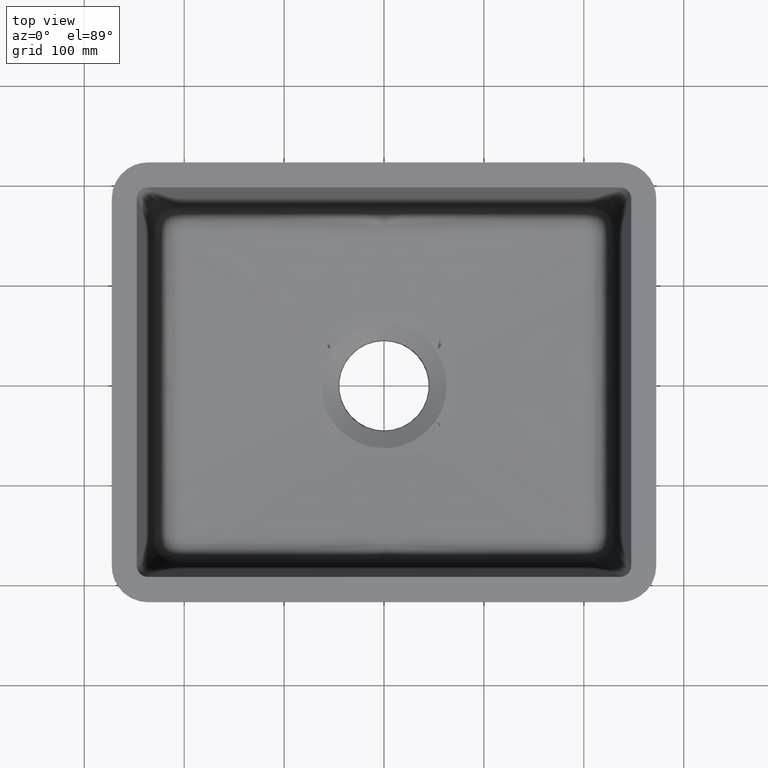
[diagram: clean part render]
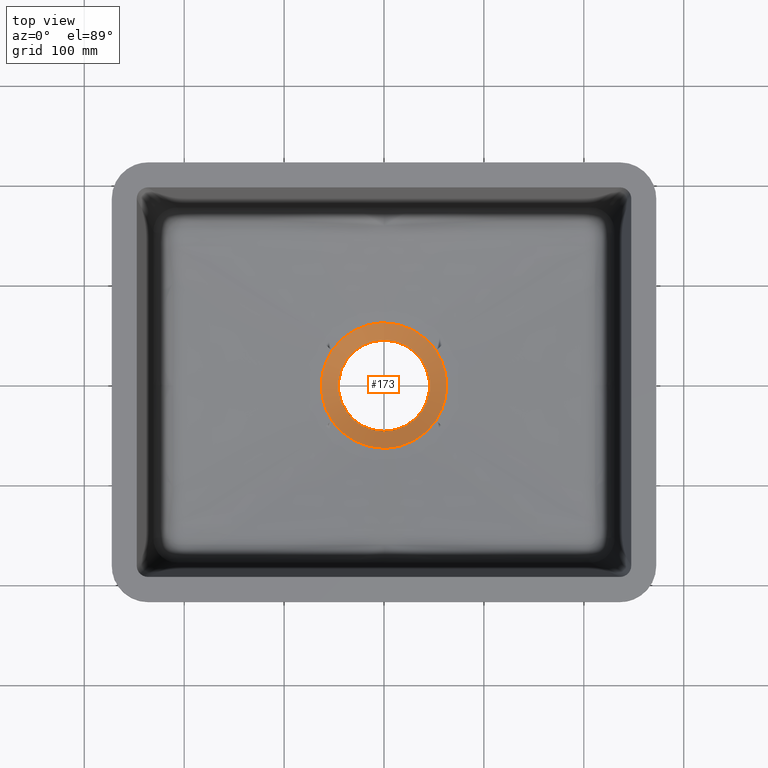
[diagram: same view with one face highlighted and labeled with its STEP entity id]
A machine part, top view. The second image highlights one B-rep face of the part: STEP entity #173.
In plain terms, the highlighted conical surface has half-angle 60 deg.
Its self-contained STEP definition (entity closure, byte-faithful):
#164=FACE_BOUND('',#313,.T.);
#165=FACE_BOUND('',#314,.T.);
#173=ADVANCED_FACE('',(#164,#165),#242,.F.);
#242=CONICAL_SURFACE('',#1213,45.6192580584448,59.9999999999997);
#313=EDGE_LOOP('',(#419,#420,#421,#422,#423,#424,#425,#426));
#314=EDGE_LOOP('',(#427,#428));
#383=CIRCLE('',#1209,45.6192580584448);
#384=CIRCLE('',#1211,45.6192580584448);
#419=ORIENTED_EDGE('',*,*,#901,.F.);
#420=ORIENTED_EDGE('',*,*,#902,.F.);
#421=ORIENTED_EDGE('',*,*,#903,.F.);
#422=ORIENTED_EDGE('',*,*,#904,.F.);
#423=ORIENTED_EDGE('',*,*,#905,.F.);
#424=ORIENTED_EDGE('',*,*,#906,.F.);
#425=ORIENTED_EDGE('',*,*,#907,.F.);
#426=ORIENTED_EDGE('',*,*,#908,.F.);
#427=ORIENTED_EDGE('',*,*,#885,.T.);
#428=ORIENTED_EDGE('',*,*,#887,.T.);
#767=VERTEX_POINT('',#1375);
#768=VERTEX_POINT('',#1377);
#781=VERTEX_POINT('',#1519);
#782=VERTEX_POINT('',#1520);
#783=VERTEX_POINT('',#1527);
#784=VERTEX_POINT('',#1538);
#785=VERTEX_POINT('',#1549);
#786=VERTEX_POINT('',#1556);
#787=VERTEX_POINT('',#1563);
#788=VERTEX_POINT('',#1574);
#885=EDGE_CURVE('',#768,#767,#383,.T.);
#887=EDGE_CURVE('',#767,#768,#384,.T.);
#901=EDGE_CURVE('',#781,#782,#1079,.T.);
#902=EDGE_CURVE('',#783,#781,#1080,.T.);
#903=EDGE_CURVE('',#784,#783,#1081,.T.);
#904=EDGE_CURVE('',#785,#784,#1082,.T.);
#905=EDGE_CURVE('',#786,#785,#1083,.T.);
#906=EDGE_CURVE('',#787,#786,#1084,.T.);
#907=EDGE_CURVE('',#788,#787,#1085,.T.);
#908=EDGE_CURVE('',#782,#788,#1086,.T.);
#1079=B_SPLINE_CURVE_WITH_KNOTS('',3,(#1513,#1514,#1515,#1516,#1517,#1518),
 .UNSPECIFIED.,.F.,.F.,(4,2,4),(0.,0.5,1.),.UNSPECIFIED.);
#1080=B_SPLINE_CURVE_WITH_KNOTS('',3,(#1521,#1522,#1523,#1524,#1525,#1526),
 .UNSPECIFIED.,.F.,.F.,(4,2,4),(0.,0.5,1.),.UNSPECIFIED.);
#1081=B_SPLINE_CURVE_WITH_KNOTS('',3,(#1528,#1529,#1530,#1531,#1532,#1533,
#1534,#1535,#1536,#1537),.UNSPECIFIED.,.F.,.F.,(4,2,2,2,4),(0.,0.25,0.5,
0.75,1.),.UNSPECIFIED.);
#1082=B_SPLINE_CURVE_WITH_KNOTS('',3,(#1539,#1540,#1541,#1542,#1543,#1544,
#1545,#1546,#1547,#1548),.UNSPECIFIED.,.F.,.F.,(4,2,2,2,4),(0.,0.25,0.5,
0.75,1.),.UNSPECIFIED.);
#1083=B_SPLINE_CURVE_WITH_KNOTS('',3,(#1550,#1551,#1552,#1553,#1554,#1555),
 .UNSPECIFIED.,.F.,.F.,(4,2,4),(0.,0.5,1.),.UNSPECIFIED.);
#1084=B_SPLINE_CURVE_WITH_KNOTS('',3,(#1557,#1558,#1559,#1560,#1561,#1562),
 .UNSPECIFIED.,.F.,.F.,(4,2,4),(0.,0.5,1.),.UNSPECIFIED.);
#1085=B_SPLINE_CURVE_WITH_KNOTS('',3,(#1564,#1565,#1566,#1567,#1568,#1569,
#1570,#1571,#1572,#1573),.UNSPECIFIED.,.F.,.F.,(4,2,2,2,4),(0.,0.25,0.5,
0.75,1.),.UNSPECIFIED.);
#1086=B_SPLINE_CURVE_WITH_KNOTS('',3,(#1575,#1576,#1577,#1578,#1579,#1580,
#1581,#1582,#1583,#1584),.UNSPECIFIED.,.F.,.F.,(4,2,2,2,4),(0.,0.25,0.5,
0.75,1.),.UNSPECIFIED.);
#1209=AXIS2_PLACEMENT_3D('',#1376,#1250,#1251);
#1211=AXIS2_PLACEMENT_3D('',#1381,#1254,#1255);
#1213=AXIS2_PLACEMENT_3D('',#1585,#1258,#1259);
#1250=DIRECTION('',(0.,0.,-1.));
#1251=DIRECTION('',(0.,-1.,0.));
#1254=DIRECTION('',(0.,0.,-1.));
#1255=DIRECTION('',(0.,-1.,0.));
#1258=DIRECTION('',(0.,0.,1.));
#1259=DIRECTION('',(0.,1.,-3.12269145465242E-17));
#1375=CARTESIAN_POINT('',(7.49655699412725E-15,-45.6192562118439,-202.89765682107));
#1376=CARTESIAN_POINT('',(5.55111512312578E-14,4.90115767001933E-14,-202.897635714325));
#1377=CARTESIAN_POINT('',(1.02899306876591E-14,45.619256211844,-202.897656821069));
#1381=CARTESIAN_POINT('',(-5.55111512312578E-14,4.90115767001933E-14,-202.897635714325));
#1513=CARTESIAN_POINT('',(62.7624660057285,9.72602113004411E-14,-192.999999991187));
#1514=CARTESIAN_POINT('',(62.7624699770168,-6.23059406532,-192.999997698363));
#1515=CARTESIAN_POINT('',(61.8351684720875,-12.4044986135589,-193.000000317763));
#1516=CARTESIAN_POINT('',(58.2195618011296,-24.2475429532478,-192.999995397417));
#1517=CARTESIAN_POINT('',(55.5876364066631,-29.7987011731621,-192.999999999918));
#1518=CARTESIAN_POINT('',(52.1158131085053,-34.9724057116147,-192.999999999934));
#1519=CARTESIAN_POINT('',(62.7624659316847,2.09640654445439E-15,-192.99999999556));
#1520=CARTESIAN_POINT('',(52.1158131094865,-34.9724057148773,-192.999999999812));
#1521=CARTESIAN_POINT('',(52.1158131085054,34.9724057116146,-192.999999999934));
#1522=CARTESIAN_POINT('',(55.5876157553911,29.7987319476488,-192.999999999918));
#1523=CARTESIAN_POINT('',(58.2578345898172,24.1554233602985,-192.999999737177));
#1524=CARTESIAN_POINT('',(61.8547186191841,12.3066798347283,-192.999995987661));
#1525=CARTESIAN_POINT('',(62.7624699770406,6.23063129007521,-192.999997698349));
#1526=CARTESIAN_POINT('',(62.7624660057286,-7.72688508124975E-14,-192.999999991187));
#1527=CARTESIAN_POINT('',(52.1158131094865,34.9724057148773,-192.999999999812));
#1528=CARTESIAN_POINT('',(0.000542035464870395,62.7624666829364,-192.999999598849));
#1529=CARTESIAN_POINT('',(5.1712286689635,62.7624475712152,-192.999984851085));
#1530=CARTESIAN_POINT('',(10.2451711854775,62.1329703643817,-193.00000677875));
#1531=CARTESIAN_POINT('',(20.2038445087799,59.6429246357928,-192.99998721656));
#1532=CARTESIAN_POINT('',(25.0440005408378,57.7746749507758,-193.000005179897));
#1533=CARTESIAN_POINT('',(34.0398042187411,52.9755513680551,-192.999994668955));
#1534=CARTESIAN_POINT('',(38.3078144778815,49.9776982900093,-193.000001543422));
#1535=CARTESIAN_POINT('',(45.8905530421298,43.1197995548733,-192.999996963593));
#1536=CARTESIAN_POINT('',(49.2346221331582,39.265951075331,-192.999999999934));
#1537=CARTESIAN_POINT('',(52.1158131085053,34.9724057116146,-192.999999999934));
#1538=CARTESIAN_POINT('',(0.000542035525890485,62.7624703417083,-193.000016263764));
#1539=CARTESIAN_POINT('',(-52.1158131085053,34.9724057116148,-192.999999999934));
#1540=CARTESIAN_POINT('',(-49.2345650670886,39.2660361150807,-192.999999999934));
#1541=CARTESIAN_POINT('',(-45.8845789016775,43.1286179879217,-192.999997786955));
#1542=CARTESIAN_POINT('',(-38.2676680194565,50.0105710046015,-193.000000742948));
#1543=CARTESIAN_POINT('',(-34.019247293479,52.9887622560602,-192.999995553684));
#1544=CARTESIAN_POINT('',(-25.0214045523185,57.7844746923792,-193.000004341459));
#1545=CARTESIAN_POINT('',(-20.1538011662951,59.6580842109295,-192.999988732463));
#1546=CARTESIAN_POINT('',(-10.2337938522636,62.1331518456418,-193.000005374714));
#1547=CARTESIAN_POINT('',(-5.17022347179172,62.762536783331,-192.999984908686));
#1548=CARTESIAN_POINT('',(0.000542035523560563,62.7624666775909,-192.999999601936));
#1549=CARTESIAN_POINT('',(-52.1158131094865,34.9724057148773,-192.999999999812));
#1550=CARTESIAN_POINT('',(-62.7624660057285,-9.30434742085279E-14,-192.999999991187));
#1551=CARTESIAN_POINT('',(-62.7624699770168,6.23059406532,-192.999997698363));
#1552=CARTESIAN_POINT('',(-61.8351684720873,12.4044986135589,-193.000000317763));
#1553=CARTESIAN_POINT('',(-58.2195618011295,24.2475429532478,-192.999995397417));
#1554=CARTESIAN_POINT('',(-55.5876364066631,29.7987011731622,-192.999999999918));
#1555=CARTESIAN_POINT('',(-52.1158131085053,34.9724057116147,-192.999999999934));
#1556=CARTESIAN_POINT('',(-62.7624659316846,-1.83066737980811E-15,-192.99999999556));
#1557=CARTESIAN_POINT('',(-52.1158131085054,-34.9724057116147,-192.999999999934));
#1558=CARTESIAN_POINT('',(-55.5876157553911,-29.7987319476488,-192.999999999918));
#1559=CARTESIAN_POINT('',(-58.257834589817,-24.1554233602984,-192.999999737177));
#1560=CARTESIAN_POINT('',(-61.8547186191839,-12.3066798347282,-192.999995987661));
#1561=CARTESIAN_POINT('',(-62.7624699770405,-6.23063129007519,-192.999997698349));
#1562=CARTESIAN_POINT('',(-62.7624660057284,7.71030315653121E-14,-192.999999991187));
#1563=CARTESIAN_POINT('',(-52.1158131093463,-34.9724057144112,-192.99999999983));
#1564=CARTESIAN_POINT('',(0.000542035523566698,-62.7624666775907,-192.999999601936));
#1565=CARTESIAN_POINT('',(-5.17023705670295,-62.7625367835151,-192.999984908647));
#1566=CARTESIAN_POINT('',(-10.2442739712407,-62.1331252049824,-193.000006743552));
#1567=CARTESIAN_POINT('',(-20.203140728166,-59.6431700934052,-192.999987254897));
#1568=CARTESIAN_POINT('',(-25.0434171965733,-57.7749358292417,-193.000005161382));
#1569=CARTESIAN_POINT('',(-34.0394222706168,-52.9758054529049,-192.999994688596));
#1570=CARTESIAN_POINT('',(-38.3075270224322,-49.97792816273,-193.00000153642));
#1571=CARTESIAN_POINT('',(-45.8904336657231,-43.1199376230221,-192.99999697084));
#1572=CARTESIAN_POINT('',(-49.2345706056987,-39.266027861454,-192.999999999934));
#1573=CARTESIAN_POINT('',(-52.1158131085053,-34.9724057116147,-192.999999999934));
#1574=CARTESIAN_POINT('',(0.000542035525890485,-62.7624703417083,-193.000016263764));
#1575=CARTESIAN_POINT('',(52.1158131085053,-34.9724057116147,-192.999999999934));
#1576=CARTESIAN_POINT('',(49.2346165930313,-39.2659593312177,-192.999999999934));
#1577=CARTESIAN_POINT('',(45.884695382044,-43.1284842209497,-192.999997780016));
#1578=CARTESIAN_POINT('',(38.2679358363885,-50.0103575537897,-193.000000749738));
#1579=CARTESIAN_POINT('',(34.0196209011158,-52.9885137343404,-192.999995534269));
#1580=CARTESIAN_POINT('',(25.0219787703842,-57.7842180323061,-193.000004359946));
#1581=CARTESIAN_POINT('',(20.1544805597104,-59.6578467818136,-192.999988694692));
#1582=CARTESIAN_POINT('',(10.2346858587551,-62.1329971956343,-193.000005409843));
#1583=CARTESIAN_POINT('',(5.17121507673143,-62.7624475712652,-192.999984851124));
#1584=CARTESIAN_POINT('',(0.000542035464837137,-62.7624666829362,-192.999999598849));
#1585=CARTESIAN_POINT('',(5.55111512312578E-14,4.90115767001933E-14,-202.897635714325));